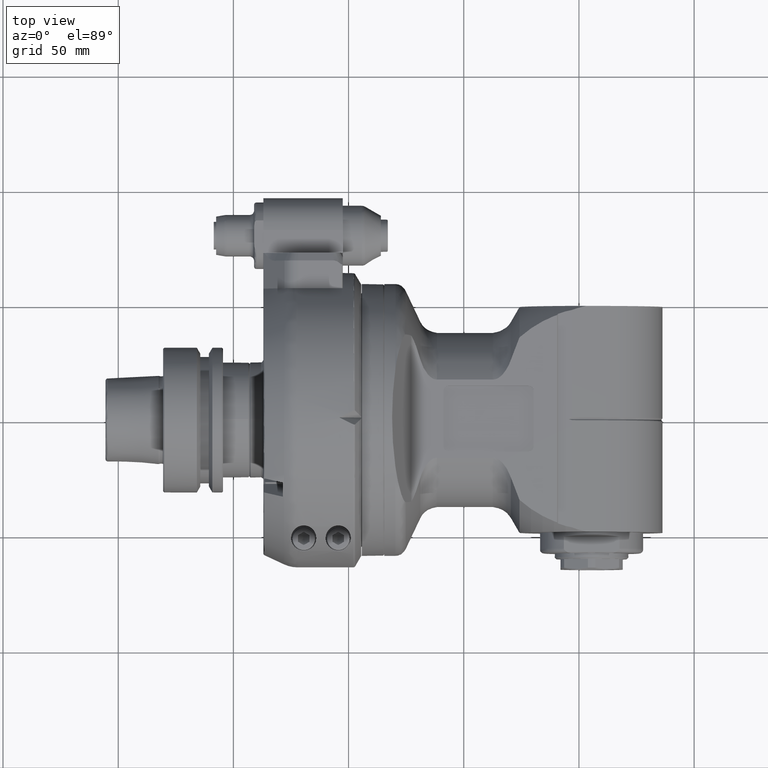
[diagram: clean part render]
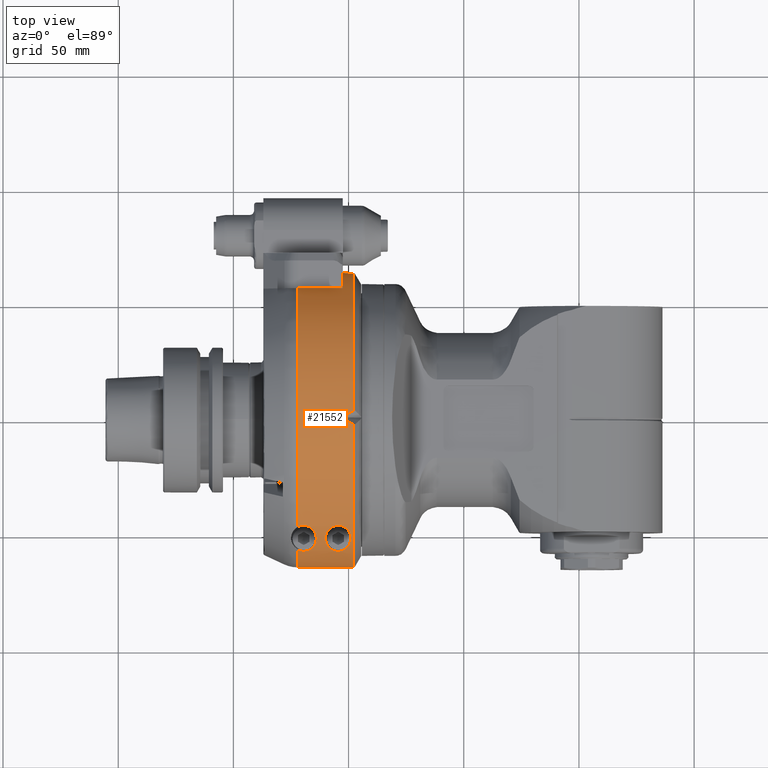
[diagram: same view with one face highlighted and labeled with its STEP entity id]
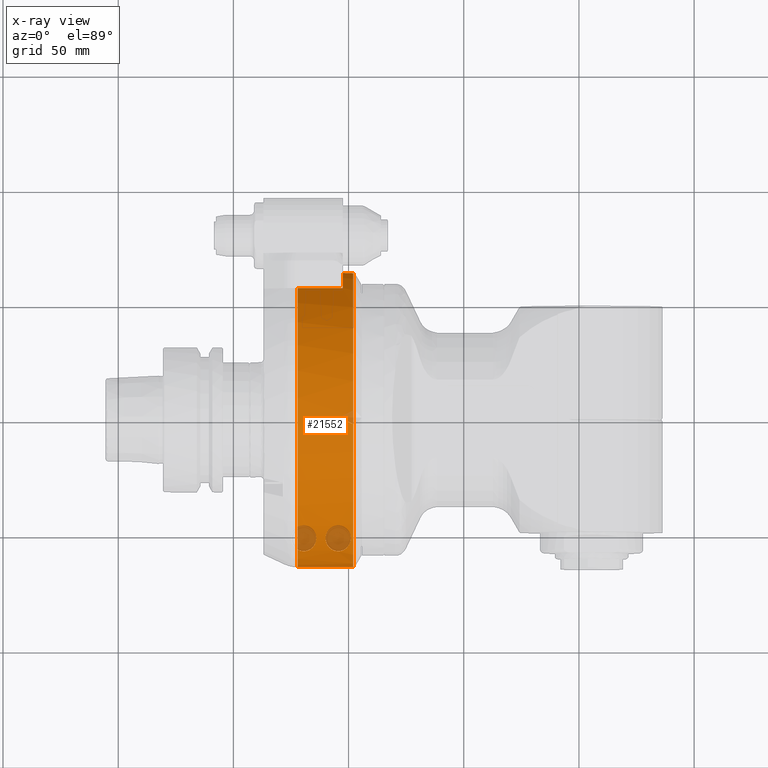
[diagram: x-ray of the same camera — body ghosted, the highlighted face saturated]
A machine part, top view. The second image highlights one B-rep face of the part: STEP entity #21552.
The next image is the same camera in x-ray: the body ghosted, the highlighted face saturated — about 6% of this face is hidden behind the body in this view.
In plain terms, the highlighted cylindrical surface (partial cylindrical patch) has radius 64 mm, axis along (1, 0, 0).
Its self-contained STEP definition (entity closure, byte-faithful):
#267=FACE_BOUND('',#4219,.T.);
#299=ELLIPSE('',#24408,181.019335983757,64.);
#300=ELLIPSE('',#24409,181.019335983756,64.);
#456=B_SPLINE_CURVE_WITH_KNOTS('',3,(#48300,#48301,#48302,#48303,#48304,
#48305,#48306,#48307,#48308,#48309,#48310,#48311,#48312,#48313,#48314,#48315,
#48316,#48317,#48318,#48319,#48320,#48321,#48322,#48323,#48324,#48325),
 .UNSPECIFIED.,.F.,.F.,(4,2,2,2,2,2,2,2,2,2,2,2,4),(2.02879410645426,2.11825098620458,
2.22700845138545,2.33576591656631,2.44452338174718,2.55328084692805,2.77079577728979,
3.17815695227663,3.58551812726346,3.9273206446781,4.26912316209275,4.47032749761269,
4.67153183313263),.UNSPECIFIED.);
#457=B_SPLINE_CURVE_WITH_KNOTS('',3,(#48328,#48329,#48330,#48331,#48332,
#48333),.UNSPECIFIED.,.F.,.F.,(4,2,4),(4.67153183313263,4.87273616865257,
4.94491762886929),.UNSPECIFIED.);
#459=B_SPLINE_CURVE_WITH_KNOTS('',3,(#48465,#48466,#48467,#48468,#48469,
#48470,#48471,#48472,#48473,#48474,#48475,#48476,#48477,#48478,#48479,#48480,
#48481,#48482,#48483,#48484,#48485,#48486,#48487,#48488,#48489,#48490,#48491,
#48492,#48493,#48494,#48495),.UNSPECIFIED.,.F.,.F.,(4,2,2,2,2,2,2,2,2,3,
2,2,2,2,4),(-2.33576591656631,-2.13456158104637,-1.93335724552643,-1.59155472811179,
-1.24975221069715,-0.842391035710311,-0.435029860723472,-0.217514930361736,
-0.108757465180868,0.,0.108757465180868,0.217514930361737,0.435029860723473,
0.842391035710311,1.24975221069715),.UNSPECIFIED.);
#460=B_SPLINE_CURVE_WITH_KNOTS('',3,(#48496,#48497,#48498,#48499,#48500,
#48501,#48502,#48503,#48504,#48505,#48506,#48507,#48508,#48509,#48510,#48511,
#48512,#48513,#48514,#48515,#48516,#48517,#48518,#48519,#48520,#48521,#48522,
#48523,#48524,#48525,#48526,#48527,#48528,#48529,#48530,#48531,#48532,#48533,
#48534,#48535,#48536,#48537,#48538,#48539,#48540,#48541,#48542,#48543,#48544,
#48545,#48546,#48547,#48548,#48549,#48550,#48551,#48552,#48553,#48554,#48555,
#48556,#48557,#48558,#48559,#48560,#48561,#48562,#48563,#48564,#48565,#48566,
#48567,#48568,#48569,#48570,#48571,#48572,#48573,#48574,#48575,#48576,#48577,
#48578,#48579,#48580,#48581,#48582,#48583,#48584,#48585,#48586,#48587,#48588,
#48589,#48590,#48591,#48592,#48593,#48594,#48595,#48596,#48597,#48598,#48599,
#48600,#48601,#48602,#48603,#48604,#48605,#48606,#48607,#48608,#48609,#48610,
#48611,#48612,#48613,#48614,#48615,#48616),.UNSPECIFIED.,.F.,.F.,(4,3,3,
3,3,3,3,3,3,3,3,3,3,3,3,3,3,3,3,3,3,3,3,3,3,3,3,3,3,3,3,3,3,3,3,3,3,3,3,
3,4),(0.,0.176268281033606,0.352594094461565,0.705168906055147,0.881531804206107,
1.05777759136069,1.23419624426878,1.41076574204134,1.58733087557863,1.76371715501194,
2.11667444606619,2.29363201397848,2.47083225234009,2.64818273955511,2.82556903885316,
3.00285784617662,3.17989988127151,3.35653259360869,3.53279006881203,3.88588471041997,
4.23983699692072,4.59442488581791,4.94923566020805,5.30369425289426,5.65708911410712,
6.00965312962859,6.36273863314811,6.71637083634553,7.07048913403507,7.42497067593104,
7.77963520331857,8.37235562836349,8.48853499359143,8.84216716252949,9.19484258138043,
9.85821383050556,9.89984743649061,10.2523420877029,10.6047209130171,10.9570904648649,
11.3094460746211),.UNSPECIFIED.);
#2235=CIRCLE('',#24391,64.);
#2243=CIRCLE('',#24406,64.);
#2244=CIRCLE('',#24407,64.);
#2245=CIRCLE('',#24410,64.);
#2246=CIRCLE('',#24411,64.);
#2247=CIRCLE('',#24412,64.);
#2400=CYLINDRICAL_SURFACE('',#24405,64.);
#3248=FACE_OUTER_BOUND('',#4218,.T.);
#4218=EDGE_LOOP('',(#19799,#19800,#19801,#19802,#19803,#19804,#19805,#19806,
#19807,#19808,#19809,#19810,#19811,#19812));
#4219=EDGE_LOOP('',(#19813,#19814));
#5708=LINE('',#48147,#7203);
#5727=LINE('',#48674,#7222);
#5728=LINE('',#48684,#7223);
#5729=LINE('',#48686,#7224);
#7203=VECTOR('',#30883,1.23076923076923);
#7222=VECTOR('',#30968,1.23076923076923);
#7223=VECTOR('',#30979,1.23076923076923);
#7224=VECTOR('',#30980,1.23076923076923);
#9759=VERTEX_POINT('',#48145);
#9760=VERTEX_POINT('',#48146);
#9779=VERTEX_POINT('',#48298);
#9780=VERTEX_POINT('',#48299);
#9781=VERTEX_POINT('',#48327);
#9782=VERTEX_POINT('',#48453);
#9783=VERTEX_POINT('',#48454);
#9786=VERTEX_POINT('',#48462);
#9787=VERTEX_POINT('',#48464);
#9798=VERTEX_POINT('',#48671);
#9799=VERTEX_POINT('',#48673);
#9800=VERTEX_POINT('',#48675);
#9801=VERTEX_POINT('',#48677);
#9802=VERTEX_POINT('',#48679);
#9803=VERTEX_POINT('',#48682);
#9804=VERTEX_POINT('',#48685);
#13108=EDGE_CURVE('',#9759,#9760,#5708,.T.);
#13135=EDGE_CURVE('',#9779,#9780,#456,.T.);
#13137=EDGE_CURVE('',#9780,#9781,#457,.T.);
#13139=EDGE_CURVE('',#9782,#9783,#2235,.T.);
#13144=EDGE_CURVE('',#9786,#9787,#459,.F.);
#13145=EDGE_CURVE('',#9787,#9786,#460,.T.);
#13160=EDGE_CURVE('',#9779,#9798,#2243,.T.);
#13161=EDGE_CURVE('',#9798,#9799,#5727,.T.);
#13162=EDGE_CURVE('',#9800,#9799,#2244,.T.);
#13163=EDGE_CURVE('',#9800,#9801,#299,.T.);
#13164=EDGE_CURVE('',#9801,#9802,#300,.T.);
#13165=EDGE_CURVE('',#9760,#9802,#2245,.T.);
#13166=EDGE_CURVE('',#9759,#9803,#2246,.T.);
#13167=EDGE_CURVE('',#9803,#9782,#5728,.T.);
#13168=EDGE_CURVE('',#9804,#9783,#5729,.T.);
#13169=EDGE_CURVE('',#9804,#9781,#2247,.T.);
#19799=ORIENTED_EDGE('',*,*,#13160,.T.);
#19800=ORIENTED_EDGE('',*,*,#13161,.T.);
#19801=ORIENTED_EDGE('',*,*,#13162,.F.);
#19802=ORIENTED_EDGE('',*,*,#13163,.T.);
#19803=ORIENTED_EDGE('',*,*,#13164,.T.);
#19804=ORIENTED_EDGE('',*,*,#13165,.F.);
#19805=ORIENTED_EDGE('',*,*,#13108,.F.);
#19806=ORIENTED_EDGE('',*,*,#13166,.T.);
#19807=ORIENTED_EDGE('',*,*,#13167,.T.);
#19808=ORIENTED_EDGE('',*,*,#13139,.T.);
#19809=ORIENTED_EDGE('',*,*,#13168,.F.);
#19810=ORIENTED_EDGE('',*,*,#13169,.T.);
#19811=ORIENTED_EDGE('',*,*,#13137,.F.);
#19812=ORIENTED_EDGE('',*,*,#13135,.F.);
#19813=ORIENTED_EDGE('',*,*,#13144,.F.);
#19814=ORIENTED_EDGE('',*,*,#13145,.F.);
#21552=ADVANCED_FACE('',(#3248,#267),#2400,.T.);
#24391=AXIS2_PLACEMENT_3D('',#48455,#30927,#30928);
#24405=AXIS2_PLACEMENT_3D('',#48670,#30964,#30965);
#24406=AXIS2_PLACEMENT_3D('',#48672,#30966,#30967);
#24407=AXIS2_PLACEMENT_3D('',#48676,#30969,#30970);
#24408=AXIS2_PLACEMENT_3D('',#48678,#30971,#30972);
#24409=AXIS2_PLACEMENT_3D('',#48680,#30973,#30974);
#24410=AXIS2_PLACEMENT_3D('',#48681,#30975,#30976);
#24411=AXIS2_PLACEMENT_3D('',#48683,#30977,#30978);
#24412=AXIS2_PLACEMENT_3D('',#48687,#30981,#30982);
#30883=DIRECTION('',(1.,0.,0.));
#30927=DIRECTION('center_axis',(1.,0.,0.));
#30928=DIRECTION('ref_axis',(0.,-1.,-1.22464679914735E-16));
#30964=DIRECTION('center_axis',(1.,0.,0.));
#30965=DIRECTION('ref_axis',(0.,1.,2.4492935982947E-16));
#30966=DIRECTION('center_axis',(1.,0.,0.));
#30967=DIRECTION('ref_axis',(0.,-1.,0.));
#30968=DIRECTION('',(1.,0.,0.));
#30969=DIRECTION('center_axis',(1.,0.,0.));
#30970=DIRECTION('ref_axis',(0.,-1.,0.));
#30971=DIRECTION('center_axis',(-0.353553390593273,-0.70710678118655,-0.612372435695793));
#30972=DIRECTION('ref_axis',(-0.935414346693486,0.267261241912424,0.231455024943136));
#30973=DIRECTION('center_axis',(-0.353553390593275,0.707106781186546,-0.612372435695796));
#30974=DIRECTION('ref_axis',(-0.935414346693485,-0.267261241912425,0.231455024943139));
#30975=DIRECTION('center_axis',(1.,0.,0.));
#30976=DIRECTION('ref_axis',(0.,-1.,0.));
#30977=DIRECTION('center_axis',(1.,0.,0.));
#30978=DIRECTION('ref_axis',(0.,-1.,0.));
#30979=DIRECTION('',(1.,0.,0.));
#30980=DIRECTION('',(1.,0.,0.));
#30981=DIRECTION('center_axis',(1.,0.,0.));
#30982=DIRECTION('ref_axis',(0.,-1.,0.));
#48145=CARTESIAN_POINT('',(-41.6014866601963,-63.9824194639554,-1.49999984615385));
#48146=CARTESIAN_POINT('',(-17.4641018459069,-63.9824194639554,-1.49999984615385));
#48147=CARTESIAN_POINT('',(-52.9230769230769,-63.9824194639554,-1.49999984615385));
#48298=CARTESIAN_POINT('',(-41.6014866601963,-56.845850851395,29.4032182078928));
#48299=CARTESIAN_POINT('',(-38.9999998461539,-46.5000004248586,43.9744239358306));
#48300=CARTESIAN_POINT('Ctrl Pts',(-41.6014866601964,-56.845850851395,29.4032182078927));
#48301=CARTESIAN_POINT('Ctrl Pts',(-41.3986417214159,-56.9547478224288,
29.1926854379833));
#48302=CARTESIAN_POINT('Ctrl Pts',(-41.1798767257179,-57.0557348259867,
28.9945100072337));
#48303=CARTESIAN_POINT('Ctrl Pts',(-40.6625591728992,-57.2514763474814,
28.6063863858627));
#48304=CARTESIAN_POINT('Ctrl Pts',(-40.3570610248518,-57.3402067212998,
28.427460786035));
#48305=CARTESIAN_POINT('Ctrl Pts',(-39.7070149129961,-57.4644037607925,
28.1755551468949));
#48306=CARTESIAN_POINT('Ctrl Pts',(-39.3625247300901,-57.5000004248586,
28.1024901234973));
#48307=CARTESIAN_POINT('Ctrl Pts',(-38.6374749622177,-57.5000004248586,
28.1024901234973));
#48308=CARTESIAN_POINT('Ctrl Pts',(-38.2929847793117,-57.4644037607925,
28.1755551468949));
#48309=CARTESIAN_POINT('Ctrl Pts',(-37.642938667456,-57.3402067212998,28.427460786035));
#48310=CARTESIAN_POINT('Ctrl Pts',(-37.3374405194086,-57.2514763474814,
28.6063863858626));
#48311=CARTESIAN_POINT('Ctrl Pts',(-36.4859055950671,-56.9292743638288,
29.245260548857));
#48312=CARTESIAN_POINT('Ctrl Pts',(-36.005955505033,-56.6383964478985,29.8072946608539));
#48313=CARTESIAN_POINT('Ctrl Pts',(-34.9198637713838,-55.7954903504443,
31.3720538264311));
#48314=CARTESIAN_POINT('Ctrl Pts',(-34.3905122731162,-55.1134442052842,
32.5657995649972));
#48315=CARTESIAN_POINT('Ctrl Pts',(-33.6763243744424,-53.6122599705469,
34.982118622536));
#48316=CARTESIAN_POINT('Ctrl Pts',(-33.4999998461539,-52.7915862645064,
36.2062457622734));
#48317=CARTESIAN_POINT('Ctrl Pts',(-33.4999998461539,-51.3358084268113,
38.2352307791049));
#48318=CARTESIAN_POINT('Ctrl Pts',(-33.6249985189847,-50.5846965992702,
39.2246598953986));
#48319=CARTESIAN_POINT('Ctrl Pts',(-34.2533117544296,-49.1081702488781,
41.0581670328891));
#48320=CARTESIAN_POINT('Ctrl Pts',(-34.7548516274362,-48.3831077989464,
41.9031361817949));
#48321=CARTESIAN_POINT('Ctrl Pts',(-35.8783783535769,-47.4391753028195,
42.9627879316647));
#48322=CARTESIAN_POINT('Ctrl Pts',(-36.4145340816014,-47.1014453269252,
43.3309739962465));
#48323=CARTESIAN_POINT('Ctrl Pts',(-37.6394124974067,-46.6307093597904,
43.837157667716));
#48324=CARTESIAN_POINT('Ctrl Pts',(-38.3293187277541,-46.5000004248586,
43.9744239358306));
#48325=CARTESIAN_POINT('Ctrl Pts',(-38.9999998461539,-46.5000004248586,
43.9744239358306));
#48327=CARTESIAN_POINT('',(-41.6014866601963,-47.1541499983221,43.2722328743935));
#48328=CARTESIAN_POINT('Ctrl Pts',(-38.9999998461539,-46.5000004248586,
43.9744239358306));
#48329=CARTESIAN_POINT('Ctrl Pts',(-39.6706809645537,-46.5000004248586,
43.9744239358306));
#48330=CARTESIAN_POINT('Ctrl Pts',(-40.3605871949011,-46.6307093597904,
43.837157667716));
#48331=CARTESIAN_POINT('Ctrl Pts',(-41.1927371570782,-46.9505149112574,
43.4932698845428));
#48332=CARTESIAN_POINT('Ctrl Pts',(-41.4031969999193,-47.0476985210445,
43.3882340278737));
#48333=CARTESIAN_POINT('Ctrl Pts',(-41.6014866601964,-47.1541499983222,
43.2722328743934));
#48453=CARTESIAN_POINT('',(-22.,56.75,-29.5877930910705));
#48454=CARTESIAN_POINT('',(-22.,56.75,29.5877930910705));
#48455=CARTESIAN_POINT('Origin',(-22.,0.,0.));
#48462=CARTESIAN_POINT('',(-29.4999998461539,-52.0000004248586,37.3095156202653));
#48464=CARTESIAN_POINT('',(-23.9999998461396,-46.5000004248586,43.9744239358306));
#48465=CARTESIAN_POINT('Ctrl Pts',(-23.9999998461539,-46.5000004248586,
43.9744239358306));
#48466=CARTESIAN_POINT('Ctrl Pts',(-23.3293187277541,-46.5000004248586,
43.9744239358306));
#48467=CARTESIAN_POINT('Ctrl Pts',(-22.6394124974067,-46.6307093597904,
43.837157667716));
#48468=CARTESIAN_POINT('Ctrl Pts',(-21.4145340816014,-47.1014453269252,
43.3309739962465));
#48469=CARTESIAN_POINT('Ctrl Pts',(-20.8783783535769,-47.4391753028195,
42.9627879316647));
#48470=CARTESIAN_POINT('Ctrl Pts',(-19.7548516274362,-48.3831077989464,
41.9031361817949));
#48471=CARTESIAN_POINT('Ctrl Pts',(-19.2533117544296,-49.1081702488781,
41.0581670328891));
#48472=CARTESIAN_POINT('Ctrl Pts',(-18.6249985189847,-50.5846965992702,
39.2246598953986));
#48473=CARTESIAN_POINT('Ctrl Pts',(-18.4999998461539,-51.3358084268113,
38.2352307791049));
#48474=CARTESIAN_POINT('Ctrl Pts',(-18.4999998461539,-52.7915862645064,
36.2062457622734));
#48475=CARTESIAN_POINT('Ctrl Pts',(-18.6763243744424,-53.6122599705469,
34.982118622536));
#48476=CARTESIAN_POINT('Ctrl Pts',(-19.3905122731162,-55.1134442052842,
32.5657995649972));
#48477=CARTESIAN_POINT('Ctrl Pts',(-19.9198637713838,-55.7954903504443,
31.372053826431));
#48478=CARTESIAN_POINT('Ctrl Pts',(-21.0059555050331,-56.6383964478985,
29.8072946608539));
#48479=CARTESIAN_POINT('Ctrl Pts',(-21.4859055950671,-56.9292743638288,
29.245260548857));
#48480=CARTESIAN_POINT('Ctrl Pts',(-22.3374405194086,-57.2514763474814,
28.6063863858626));
#48481=CARTESIAN_POINT('Ctrl Pts',(-22.642938667456,-57.3402067212998,28.427460786035));
#48482=CARTESIAN_POINT('Ctrl Pts',(-23.2929847793117,-57.4644037607925,
28.1755551468949));
#48483=CARTESIAN_POINT('Ctrl Pts',(-23.6374749622177,-57.5000004248586,
28.1024901234973));
#48484=CARTESIAN_POINT('Ctrl Pts',(-23.9999998461539,-57.5000004248586,
28.1024901234973));
#48485=CARTESIAN_POINT('Ctrl Pts',(-24.3625247300901,-57.5000004248586,
28.1024901234973));
#48486=CARTESIAN_POINT('Ctrl Pts',(-24.7070149129961,-57.4644037607925,
28.1755551468949));
#48487=CARTESIAN_POINT('Ctrl Pts',(-25.3570610248518,-57.3402067212998,
28.427460786035));
#48488=CARTESIAN_POINT('Ctrl Pts',(-25.6625591728992,-57.2514763474814,
28.6063863858626));
#48489=CARTESIAN_POINT('Ctrl Pts',(-26.5140940972407,-56.9292743638288,
29.245260548857));
#48490=CARTESIAN_POINT('Ctrl Pts',(-26.9940441872748,-56.6383964478985,
29.8072946608539));
#48491=CARTESIAN_POINT('Ctrl Pts',(-28.080135920924,-55.7954903504443,31.372053826431));
#48492=CARTESIAN_POINT('Ctrl Pts',(-28.6094874191916,-55.1134442052842,
32.5657995649972));
#48493=CARTESIAN_POINT('Ctrl Pts',(-29.3236753178654,-53.6122599705469,
34.982118622536));
#48494=CARTESIAN_POINT('Ctrl Pts',(-29.4999998461539,-52.7915862645064,
36.2062457622734));
#48495=CARTESIAN_POINT('Ctrl Pts',(-29.4999998461539,-52.0000004248586,
37.3095156202102));
#48496=CARTESIAN_POINT('Ctrl Pts',(-23.9999998461539,-46.5000004248586,
43.9744239358306));
#48497=CARTESIAN_POINT('Ctrl Pts',(-24.0587255671468,-46.5000004248586,
43.9744239358306));
#48498=CARTESIAN_POINT('Ctrl Pts',(-24.1174917409492,-46.5009418483114,
43.9734286160487));
#48499=CARTESIAN_POINT('Ctrl Pts',(-24.1761946663621,-46.5028233870207,
43.9714386509737));
#48500=CARTESIAN_POINT('Ctrl Pts',(-24.2349167518861,-46.5047055398475,
43.9694480363918));
#48501=CARTESIAN_POINT('Ctrl Pts',(-24.2935746807554,-46.5075281899355,
43.9664628015477));
#48502=CARTESIAN_POINT('Ctrl Pts',(-24.3520840683806,-46.5112813848221,
43.9624920124179));
#48503=CARTESIAN_POINT('Ctrl Pts',(-24.4690773543742,-46.5187861395389,
43.9545521640083));
#48504=CARTESIAN_POINT('Ctrl Pts',(-24.5855071273087,-46.5300130144453,
43.9426719012658));
#48505=CARTESIAN_POINT('Ctrl Pts',(-24.701094183183,-46.5448682788345,43.9269306566393));
#48506=CARTESIAN_POINT('Ctrl Pts',(-24.7589124603044,-46.5522990917977,
43.9190566638538));
#48507=CARTESIAN_POINT('Ctrl Pts',(-24.8164588647352,-46.5606294818487,
43.9102258902104));
#48508=CARTESIAN_POINT('Ctrl Pts',(-24.8737018162296,-46.569839758038,43.9004558622819));
#48509=CARTESIAN_POINT('Ctrl Pts',(-24.9309067564463,-46.5790439182888,
43.8906923219861));
#48510=CARTESIAN_POINT('Ctrl Pts',(-24.9877507883346,-46.5891166476106,
43.8800010444805));
#48511=CARTESIAN_POINT('Ctrl Pts',(-25.0442809701831,-46.6000488571132,
43.8683877811972));
#48512=CARTESIAN_POINT('Ctrl Pts',(-25.1008665980803,-46.6109917891679,
43.8567631273692));
#48513=CARTESIAN_POINT('Ctrl Pts',(-25.1571164633571,-46.6227929968094,
43.8442189653161));
#48514=CARTESIAN_POINT('Ctrl Pts',(-25.2129656126772,-46.6354208468075,
43.8307828181526));
#48515=CARTESIAN_POINT('Ctrl Pts',(-25.2688625152095,-46.6480594941125,
43.8173351825565));
#48516=CARTESIAN_POINT('Ctrl Pts',(-25.3243578592055,-46.6615259337254,
43.8029956903132));
#48517=CARTESIAN_POINT('Ctrl Pts',(-25.379408866613,-46.675788675287,43.7877922662121));
#48518=CARTESIAN_POINT('Ctrl Pts',(-25.4344585133351,-46.6900510643191,
43.7725892178912));
#48519=CARTESIAN_POINT('Ctrl Pts',(-25.4890633347846,-46.7051095418943,
43.7565223909762));
#48520=CARTESIAN_POINT('Ctrl Pts',(-25.5431856743997,-46.7209306678369,
43.739623198427));
#48521=CARTESIAN_POINT('Ctrl Pts',(-25.5972531900392,-46.7367357675502,
43.7227411241496));
#48522=CARTESIAN_POINT('Ctrl Pts',(-25.650837966291,-46.7533025786885,43.7050268542711));
#48523=CARTESIAN_POINT('Ctrl Pts',(-25.7038175043747,-46.7705639936994,
43.686546484279));
#48524=CARTESIAN_POINT('Ctrl Pts',(-25.8098320668644,-46.8051049018788,
43.6495663895061));
#48525=CARTESIAN_POINT('Ctrl Pts',(-25.9139420930673,-46.8425952925877,
43.6093444979589));
#48526=CARTESIAN_POINT('Ctrl Pts',(-26.015874444482,-46.8827502254042,43.5661305532828));
#48527=CARTESIAN_POINT('Ctrl Pts',(-26.0669789306481,-46.9028821774307,
43.5444649445998));
#48528=CARTESIAN_POINT('Ctrl Pts',(-26.1174630713542,-46.9236536726418,
43.5220834715869));
#48529=CARTESIAN_POINT('Ctrl Pts',(-26.1673554564422,-46.9450454637781,
43.4989966138892));
#48530=CARTESIAN_POINT('Ctrl Pts',(-26.2173162613646,-46.9664665905096,
43.4758780960699));
#48531=CARTESIAN_POINT('Ctrl Pts',(-26.2666840691868,-46.9885104186408,
43.4520542760141));
#48532=CARTESIAN_POINT('Ctrl Pts',(-26.3154421045624,-47.0111401193403,
43.42755697347));
#48533=CARTESIAN_POINT('Ctrl Pts',(-26.3642414820886,-47.0337890078616,
43.4030388995565));
#48534=CARTESIAN_POINT('Ctrl Pts',(-26.4124303603687,-47.0570248728966,
43.3778474323527));
#48535=CARTESIAN_POINT('Ctrl Pts',(-26.4599959651301,-47.0808115593421,
43.352014750343));
#48536=CARTESIAN_POINT('Ctrl Pts',(-26.5075711747335,-47.1046030489928,
43.3261768519836));
#48537=CARTESIAN_POINT('Ctrl Pts',(-26.5545228251463,-47.1289455344018,
43.2996978312948));
#48538=CARTESIAN_POINT('Ctrl Pts',(-26.6008419021424,-47.1538039162757,
43.2726100001734));
#48539=CARTESIAN_POINT('Ctrl Pts',(-26.6471355220526,-47.1786486359178,
43.245537056595));
#48540=CARTESIAN_POINT('Ctrl Pts',(-26.6927968320119,-47.2040084242639,
43.2178553955189));
#48541=CARTESIAN_POINT('Ctrl Pts',(-26.7378202937091,-47.2298495680252,
43.1895972404485));
#48542=CARTESIAN_POINT('Ctrl Pts',(-26.7827810862499,-47.2556547429245,
43.1613784185318));
#48543=CARTESIAN_POINT('Ctrl Pts',(-26.8271049377484,-47.2819394094739,
43.1325831938661));
#48544=CARTESIAN_POINT('Ctrl Pts',(-26.8707894696744,-47.3086715153185,
43.1032434914536));
#48545=CARTESIAN_POINT('Ctrl Pts',(-26.9143730025746,-47.3353418162969,
43.0739716226937));
#48546=CARTESIAN_POINT('Ctrl Pts',(-26.9573186825655,-47.3624569077558,
43.0441553642264));
#48547=CARTESIAN_POINT('Ctrl Pts',(-26.9996000246809,-47.3899680205277,
43.0138458061301));
#48548=CARTESIAN_POINT('Ctrl Pts',(-27.0417915446482,-47.4174206889097,
42.9836006374187));
#48549=CARTESIAN_POINT('Ctrl Pts',(-27.0833200810857,-47.4452657393486,
42.9528646480134));
#48550=CARTESIAN_POINT('Ctrl Pts',(-27.1242366708655,-47.4735068301303,
42.9216279896471));
#48551=CARTESIAN_POINT('Ctrl Pts',(-27.2062044205309,-47.5300818934954,
42.8590519390247));
#48552=CARTESIAN_POINT('Ctrl Pts',(-27.2856812733305,-47.5882257888668,
42.7944958497112));
#48553=CARTESIAN_POINT('Ctrl Pts',(-27.3626394249489,-47.6476843675023,
42.7281894599134));
#48554=CARTESIAN_POINT('Ctrl Pts',(-27.4397845031244,-47.7072873673221,
42.6617220160246));
#48555=CARTESIAN_POINT('Ctrl Pts',(-27.5144037326305,-47.7682136949962,
42.5935042476316));
#48556=CARTESIAN_POINT('Ctrl Pts',(-27.586540548406,-47.8302611295202,42.5237124477282));
#48557=CARTESIAN_POINT('Ctrl Pts',(-27.6588069023558,-47.8924199844237,
42.4537953206636));
#48558=CARTESIAN_POINT('Ctrl Pts',(-27.7285848564335,-47.9557062068213,
42.3823043670901));
#48559=CARTESIAN_POINT('Ctrl Pts',(-27.7959342357379,-48.0199398587398,
42.3094005626332));
#48560=CARTESIAN_POINT('Ctrl Pts',(-27.8633259492563,-48.0842138864004,
42.236450932583));
#48561=CARTESIAN_POINT('Ctrl Pts',(-27.9282867982575,-48.1494370244141,
42.162088801513));
#48562=CARTESIAN_POINT('Ctrl Pts',(-27.9908882950723,-48.215451655416,42.0864612634401));
#48563=CARTESIAN_POINT('Ctrl Pts',(-28.0534276542537,-48.2814007609408,
42.0109087925217));
#48564=CARTESIAN_POINT('Ctrl Pts',(-28.1136106752705,-48.3481378397917,
41.9340913447984));
#48565=CARTESIAN_POINT('Ctrl Pts',(-28.1715164734509,-48.4155270983872,
41.8561433473188));
#48566=CARTESIAN_POINT('Ctrl Pts',(-28.2292484961288,-48.4827141215825,
41.7784292720516));
#48567=CARTESIAN_POINT('Ctrl Pts',(-28.2847109704171,-48.5505460065881,
41.6995851119571));
#48568=CARTESIAN_POINT('Ctrl Pts',(-28.3378987918922,-48.6187827837473,
41.6198745873838));
#48569=CARTESIAN_POINT('Ctrl Pts',(-28.3909615666359,-48.6868591334682,
41.5403514654957));
#48570=CARTESIAN_POINT('Ctrl Pts',(-28.4419070269772,-48.7555246496052,
41.4597432966666));
#48571=CARTESIAN_POINT('Ctrl Pts',(-28.4907681315728,-48.824626398594,41.3782050972074));
#48572=CARTESIAN_POINT('Ctrl Pts',(-28.5397015080921,-48.89383035805,41.2965462921546));
#48573=CARTESIAN_POINT('Ctrl Pts',(-28.5865317335577,-48.9634522548525,
41.2139813437724));
#48574=CARTESIAN_POINT('Ctrl Pts',(-28.6313347236333,-49.0333967687153,
41.1305968999808));
#48575=CARTESIAN_POINT('Ctrl Pts',(-28.6762070843854,-49.1034495811143,
41.0470833479474));
#48576=CARTESIAN_POINT('Ctrl Pts',(-28.7190474003451,-49.1738283289795,
40.9627500330553));
#48577=CARTESIAN_POINT('Ctrl Pts',(-28.7599296954704,-49.244448242521,40.8776750477513));
#48578=CARTESIAN_POINT('Ctrl Pts',(-28.8008681864352,-49.3151652285313,
40.7924831203775));
#48579=CARTESIAN_POINT('Ctrl Pts',(-28.8398443972452,-49.3861259957423,
40.7065493429646));
#48580=CARTESIAN_POINT('Ctrl Pts',(-28.8769302195833,-49.4572558185873,
40.6199439549731));
#48581=CARTESIAN_POINT('Ctrl Pts',(-28.9140540834746,-49.5284586043269,
40.5332497297042));
#48582=CARTESIAN_POINT('Ctrl Pts',(-28.9492843990157,-49.599832182817,40.4458837834914));
#48583=CARTESIAN_POINT('Ctrl Pts',(-28.9826904150047,-49.6713109446819,
40.3579096217727));
#48584=CARTESIAN_POINT('Ctrl Pts',(-29.0161136753788,-49.7428266043111,
40.2698900472656));
#48585=CARTESIAN_POINT('Ctrl Pts',(-29.0477114002428,-49.8144480910876,
40.1812622004807));
#48586=CARTESIAN_POINT('Ctrl Pts',(-29.0775587324476,-49.8861423983535,
40.0920540333961));
#48587=CARTESIAN_POINT('Ctrl Pts',(-29.1274400204388,-50.0059589489089,
39.9429680701019));
#48588=CARTESIAN_POINT('Ctrl Pts',(-29.172405942819,-50.1259172909085,39.7923336070564));
#48589=CARTESIAN_POINT('Ctrl Pts',(-29.2127172757896,-50.2456979997412,
39.6405071091011));
#48590=CARTESIAN_POINT('Ctrl Pts',(-29.2206187161283,-50.2691762639122,
39.6107475371142));
#48591=CARTESIAN_POINT('Ctrl Pts',(-29.2283413301197,-50.2926478641373,
39.5809421670562));
#48592=CARTESIAN_POINT('Ctrl Pts',(-29.2358870818558,-50.3161106259069,
39.5510936833692));
#48593=CARTESIAN_POINT('Ctrl Pts',(-29.2588551928236,-50.3875276741716,
39.4602394769872));
#48594=CARTESIAN_POINT('Ctrl Pts',(-29.2802097063573,-50.4589412866886,
39.3688795267251));
#48595=CARTESIAN_POINT('Ctrl Pts',(-29.2999904273628,-50.5302726136307,
39.2771122875559));
#48596=CARTESIAN_POINT('Ctrl Pts',(-29.3197176317253,-50.60141095402,39.1855933241991));
#48597=CARTESIAN_POINT('Ctrl Pts',(-29.3378629544964,-50.6724017182995,
39.0937489797088));
#48598=CARTESIAN_POINT('Ctrl Pts',(-29.3544989718105,-50.7432828299541,
39.0015287859968));
#48599=CARTESIAN_POINT('Ctrl Pts',(-29.3857907914164,-50.8766079472273,
38.8280655338751));
#48600=CARTESIAN_POINT('Ctrl Pts',(-29.4117515192447,-51.0095963977931,
38.6531962384985));
#48601=CARTESIAN_POINT('Ctrl Pts',(-29.4326567611545,-51.1419568106429,
38.4772693498136));
#48602=CARTESIAN_POINT('Ctrl Pts',(-29.4339687875738,-51.1502638352296,
38.4662280652006));
#48603=CARTESIAN_POINT('Ctrl Pts',(-29.4352608973309,-51.1585684025616,
38.4551826148351));
#48604=CARTESIAN_POINT('Ctrl Pts',(-29.4365331570256,-51.1668704471343,
38.4441330848567));
#48605=CARTESIAN_POINT('Ctrl Pts',(-29.4473048575953,-51.2371604505285,
38.3505812503797));
#48606=CARTESIAN_POINT('Ctrl Pts',(-29.4566538961794,-51.307269464026,38.2567358226744));
#48607=CARTESIAN_POINT('Ctrl Pts',(-29.4646208480221,-51.3771703469553,
38.162630506039));
#48608=CARTESIAN_POINT('Ctrl Pts',(-29.4725851820113,-51.4470482612168,
38.0685561113844));
#48609=CARTESIAN_POINT('Ctrl Pts',(-29.4791678773422,-51.5167105994878,
37.9742320492769));
#48610=CARTESIAN_POINT('Ctrl Pts',(-29.4844086729327,-51.5861649252331,
37.8796460953206));
#48611=CARTESIAN_POINT('Ctrl Pts',(-29.4896493306025,-51.6556174231661,
37.7850626305595));
#48612=CARTESIAN_POINT('Ctrl Pts',(-29.4935464084924,-51.7248443369484,
37.6902409900867));
#48613=CARTESIAN_POINT('Ctrl Pts',(-29.496134008543,-51.7938226641289,37.5952115812211));
#48614=CARTESIAN_POINT('Ctrl Pts',(-29.4987215062109,-51.8627982620664,
37.5001859323533));
#48615=CARTESIAN_POINT('Ctrl Pts',(-29.4999998461539,-51.931530649188,37.4049451187397));
#48616=CARTESIAN_POINT('Ctrl Pts',(-29.4999998461539,-52.0000004248586,
37.3095156202653));
#48670=CARTESIAN_POINT('Origin',(-52.9230769230769,0.,0.));
#48671=CARTESIAN_POINT('',(-41.6014866601963,-63.9824194639554,1.49999984615385));
#48672=CARTESIAN_POINT('Origin',(-41.6014866601963,0.,0.));
#48673=CARTESIAN_POINT('',(-17.4641018459069,-63.9824194639554,1.49999984615384));
#48674=CARTESIAN_POINT('',(-52.9230769230769,-63.9824194639554,1.49999984615384));
#48675=CARTESIAN_POINT('',(-17.4641018459065,-2.9713228615246,63.930988107901));
#48676=CARTESIAN_POINT('Origin',(-17.4641018459066,0.,0.));
#48677=CARTESIAN_POINT('',(-23.5262796723977,-7.105427357601E-15,64.));
#48678=CARTESIAN_POINT('Origin',(87.3249720120105,0.,2.1316282072803E-14));
#48679=CARTESIAN_POINT('',(-17.4641018459065,2.9713228615246,63.930988107901));
#48680=CARTESIAN_POINT('Origin',(87.3249720120105,-7.105427357601E-15,7.105427357601E-15));
#48681=CARTESIAN_POINT('Origin',(-17.4641018459066,0.,0.));
#48682=CARTESIAN_POINT('',(-41.6014866601963,56.75,-29.5877930910705));
#48683=CARTESIAN_POINT('Origin',(-41.6014866601963,0.,0.));
#48684=CARTESIAN_POINT('',(-52.9230769230769,56.75,-29.5877930910705));
#48685=CARTESIAN_POINT('',(-41.6014866601963,56.75,29.5877930910705));
#48686=CARTESIAN_POINT('',(-52.9230769230769,56.75,29.5877930910705));
#48687=CARTESIAN_POINT('Origin',(-41.6014866601963,0.,0.));